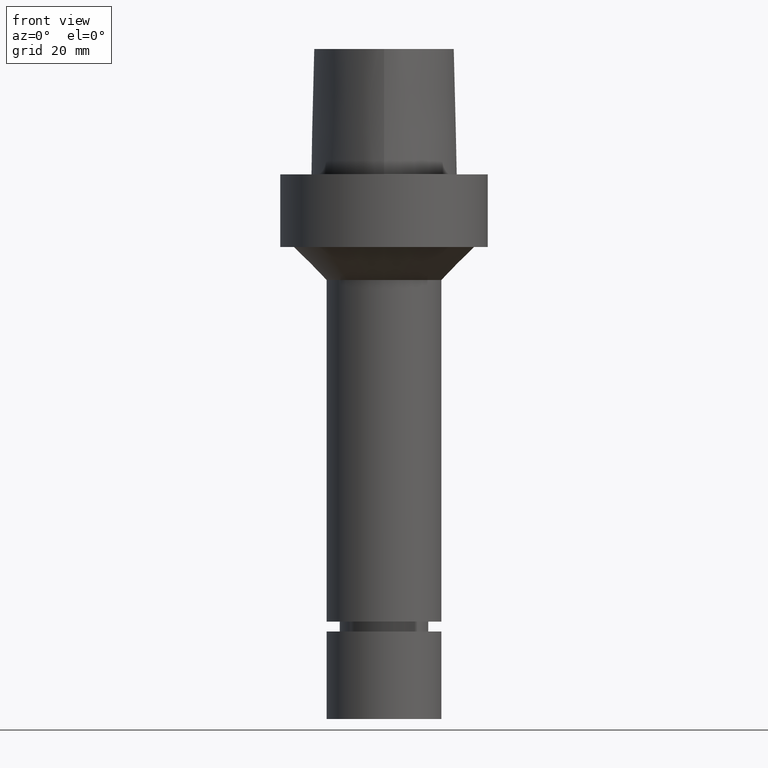
[diagram: clean part render]
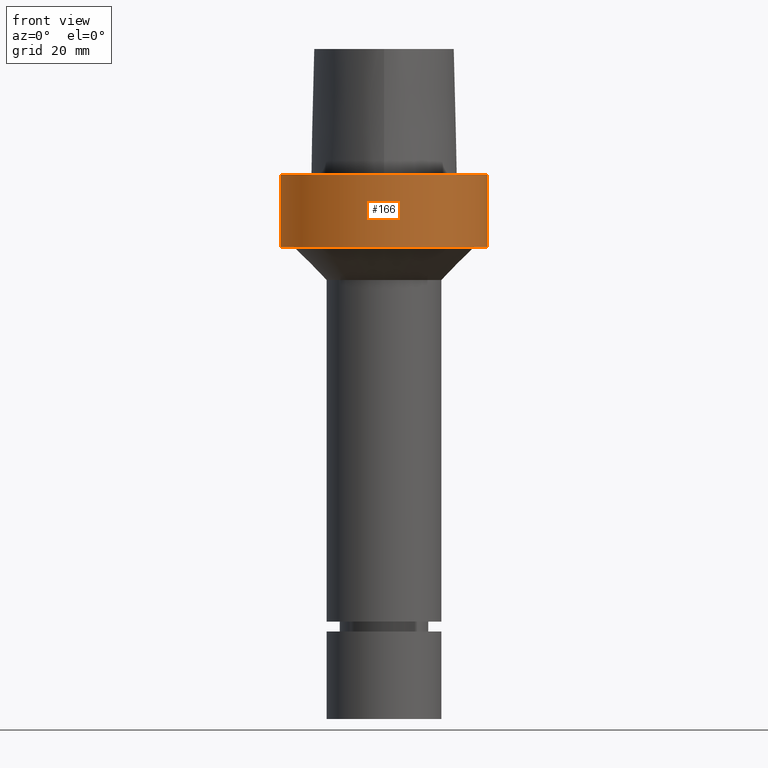
[diagram: same view with one face highlighted and labeled with its STEP entity id]
A machine part, front view. The second image highlights one B-rep face of the part: STEP entity #166.
In plain terms, the highlighted cylindrical surface (bore or boss wall) has radius 31.5 mm, axis along (0, 0, -1).
Its self-contained STEP definition (entity closure, byte-faithful):
#75=EDGE_CURVE('Unnamed[1]',#195,#195,#196,.T.);
#121=EDGE_CURVE('Unnamed[1]',#264,#264,#265,.T.);
#166=ADVANCED_FACE('Unnamed[1]',(#327,#328),#329,.T.);
#195=VERTEX_POINT('',#354);
#196=CIRCLE('',#355,31.5);
#264=VERTEX_POINT('',#558);
#265=CIRCLE('',#559,31.5);
#327=FACE_BOUND('',#709,.T.);
#328=FACE_BOUND('',#710,.T.);
#329=CYLINDRICAL_SURFACE('',#711,31.5);
#354=CARTESIAN_POINT('',(1.34711147906212E-015,31.5,-22.0000000000006));
#355=AXIS2_PLACEMENT_3D('',#740,#741,#742);
#558=CARTESIAN_POINT('',(-3.88267476788467E-031,31.5,3.85763741731416E-015));
#559=AXIS2_PLACEMENT_3D('',#803,#804,#805);
#709=EDGE_LOOP('',(#876));
#710=EDGE_LOOP('',(#877));
#711=AXIS2_PLACEMENT_3D('',#878,#879,#880);
#740=CARTESIAN_POINT('',(1.34711147906212E-015,2.69422295812425E-015,-22.0000000000006));
#741=DIRECTION('',(6.12323399573677E-017,1.22464679914735E-016,-1.0));
#742=DIRECTION('',(-1.23259516440783E-032,1.0,1.22464679914735E-016));
#803=CARTESIAN_POINT('',(0.0,0.0,0.0));
#804=DIRECTION('',(6.12323399573677E-017,1.22464679914735E-016,-1.0));
#805=DIRECTION('',(-1.23259516440783E-032,1.0,1.22464679914735E-016));
#876=ORIENTED_EDGE('',*,*,#75,.F.);
#877=ORIENTED_EDGE('',*,*,#121,.T.);
#878=CARTESIAN_POINT('',(6.73555739531062E-016,1.34711147906212E-015,-11.0000000000003));
#879=DIRECTION('',(6.12323399573677E-017,1.22464679914735E-016,-1.0));
#880=DIRECTION('',(-1.23259516440783E-032,1.0,1.22464679914735E-016));